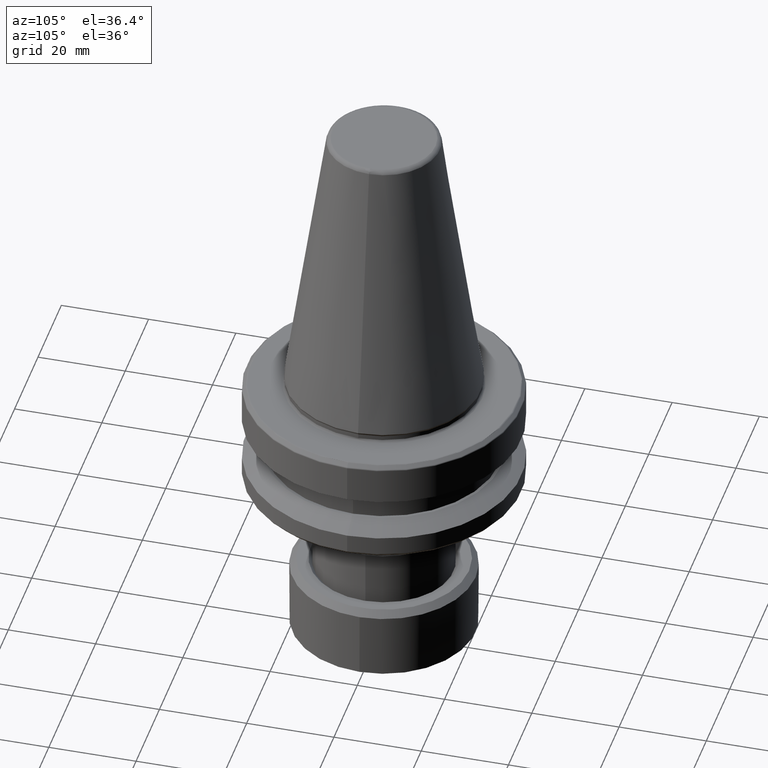
[diagram: clean part render]
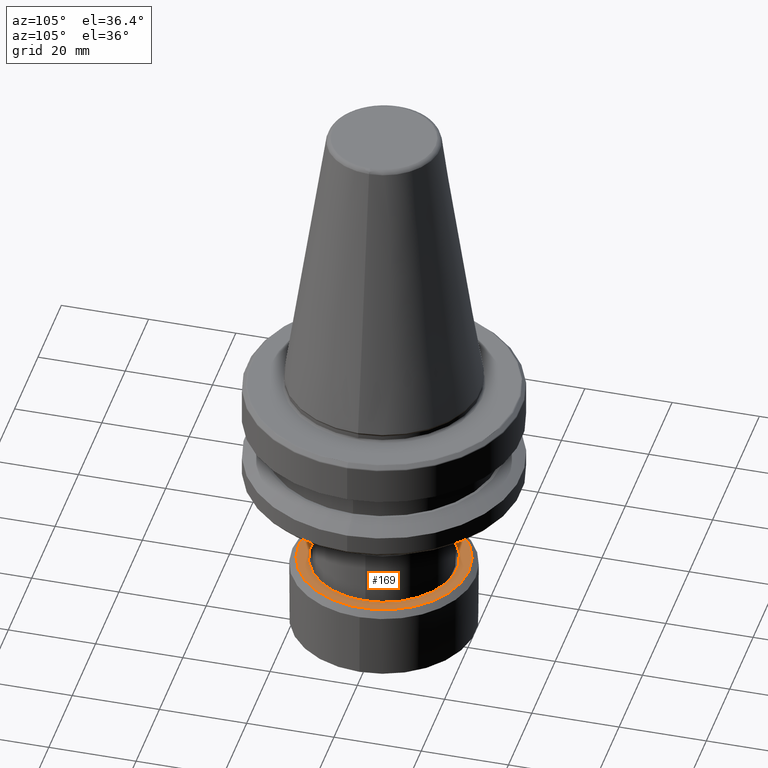
[diagram: same view with one face highlighted and labeled with its STEP entity id]
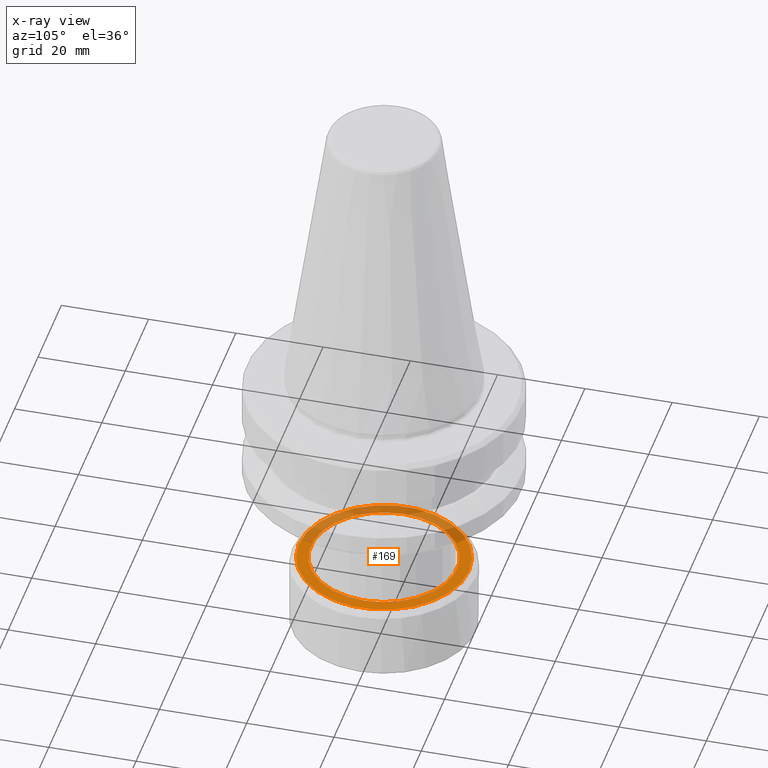
[diagram: x-ray of the same camera — body ghosted, the highlighted face saturated]
A machine part, auxiliary view. The second image highlights one B-rep face of the part: STEP entity #169.
The next image is the same camera in x-ray: the body ghosted, the highlighted face saturated — about 39% of this face is hidden behind the body in this view.
In plain terms, the highlighted planar face has unit normal (0, 0, -1).
Its self-contained STEP definition (entity closure, byte-faithful):
#134 = AXIS2_PLACEMENT_3D ( 'NONE', #1215, #1214, #1211 ) ;
#169 = ADVANCED_FACE ( 'NONE', ( #736, #740 ), #2213, .F. ) ;
#264 = DIRECTION ( 'NONE',  ( 0.0000000000000000000, -0.0000000000000000000, 1.000000000000000000 ) ) ;
#271 = CARTESIAN_POINT ( 'NONE',  ( 61.73341380625030400, 81.23534176582239800, 17.06793828204414600 ) ) ;
#305 = CIRCLE ( 'NONE', #2420, 16.75000000000001400 ) ;
#350 = AXIS2_PLACEMENT_3D ( 'NONE', #807, #560, #635 ) ;
#385 = EDGE_CURVE ( 'NONE', #776, #1526, #698, .T. ) ;
#438 = DIRECTION ( 'NONE',  ( 0.0000000000000000000, -0.0000000000000000000, 1.000000000000000000 ) ) ;
#485 = CIRCLE ( 'NONE', #2520, 16.75000000000001400 ) ;
#560 = DIRECTION ( 'NONE',  ( -0.0000000000000000000, 4.448008912761044100E-017, 1.000000000000000000 ) ) ;
#573 = CIRCLE ( 'NONE', #134, 19.49999999999998900 ) ;
#635 = DIRECTION ( 'NONE',  ( 0.0000000000000000000, 1.000000000000000000, 0.0000000000000000000 ) ) ;
#658 = DIRECTION ( 'NONE',  ( 1.000000000000000000, 0.0000000000000000000, 0.0000000000000000000 ) ) ;
#698 = CIRCLE ( 'NONE', #350, 19.49999999999998900 ) ;
#736 = FACE_BOUND ( 'NONE', #1546, .T. ) ;
#740 = FACE_OUTER_BOUND ( 'NONE', #1917, .T. ) ;
#776 = VERTEX_POINT ( 'NONE', #1536 ) ;
#807 = CARTESIAN_POINT ( 'NONE',  ( 61.73341380625030400, 81.23534176582239800, 17.06793828204414600 ) ) ;
#901 = EDGE_CURVE ( 'NONE', #1526, #776, #573, .T. ) ;
#906 = ORIENTED_EDGE ( 'NONE', *, *, #1272, .F. ) ;
#999 = ORIENTED_EDGE ( 'NONE', *, *, #385, .T. ) ;
#1127 = VERTEX_POINT ( 'NONE', #1570 ) ;
#1211 = DIRECTION ( 'NONE',  ( 0.0000000000000000000, 1.000000000000000000, 0.0000000000000000000 ) ) ;
#1214 = DIRECTION ( 'NONE',  ( -0.0000000000000000000, 4.448008912761044100E-017, 1.000000000000000000 ) ) ;
#1215 = CARTESIAN_POINT ( 'NONE',  ( 61.73341380625030400, 81.23534176582239800, 17.06793828204414600 ) ) ;
#1272 = EDGE_CURVE ( 'NONE', #1127, #1680, #485, .T. ) ;
#1300 = ORIENTED_EDGE ( 'NONE', *, *, #1844, .F. ) ;
#1370 = CARTESIAN_POINT ( 'NONE',  ( 61.73341380625030400, 100.7353417658223800, 17.06793828204414600 ) ) ;
#1526 = VERTEX_POINT ( 'NONE', #1370 ) ;
#1536 = CARTESIAN_POINT ( 'NONE',  ( 61.73341380625030400, 61.73534176582240500, 17.06793828204414600 ) ) ;
#1546 = EDGE_LOOP ( 'NONE', ( #906, #1300 ) ) ;
#1562 = CARTESIAN_POINT ( 'NONE',  ( 44.98341380625029700, 81.23534176582239800, 17.06793828204414600 ) ) ;
#1570 = CARTESIAN_POINT ( 'NONE',  ( 78.48341380625031100, 81.23534176582239800, 17.06793828204414600 ) ) ;
#1680 = VERTEX_POINT ( 'NONE', #1562 ) ;
#1712 = CARTESIAN_POINT ( 'NONE',  ( 81.46741380625030600, 61.50134176582239600, 17.06793828204413900 ) ) ;
#1768 = CARTESIAN_POINT ( 'NONE',  ( 61.73341380625030400, 81.23534176582239800, 17.06793828204414600 ) ) ;
#1844 = EDGE_CURVE ( 'NONE', #1680, #1127, #305, .T. ) ;
#1873 = DIRECTION ( 'NONE',  ( 0.0000000000000000000, 0.0000000000000000000, -1.000000000000000000 ) ) ;
#1917 = EDGE_LOOP ( 'NONE', ( #2216, #999 ) ) ;
#1955 = DIRECTION ( 'NONE',  ( 1.000000000000000000, 0.0000000000000000000, 0.0000000000000000000 ) ) ;
#2213 = PLANE ( 'NONE',  #2604 ) ;
#2216 = ORIENTED_EDGE ( 'NONE', *, *, #901, .T. ) ;
#2420 = AXIS2_PLACEMENT_3D ( 'NONE', #1768, #438, #1955 ) ;
#2452 = DIRECTION ( 'NONE',  ( -1.000000000000000000, 0.0000000000000000000, 0.0000000000000000000 ) ) ;
#2520 = AXIS2_PLACEMENT_3D ( 'NONE', #271, #264, #658 ) ;
#2604 = AXIS2_PLACEMENT_3D ( 'NONE', #1712, #1873, #2452 ) ;